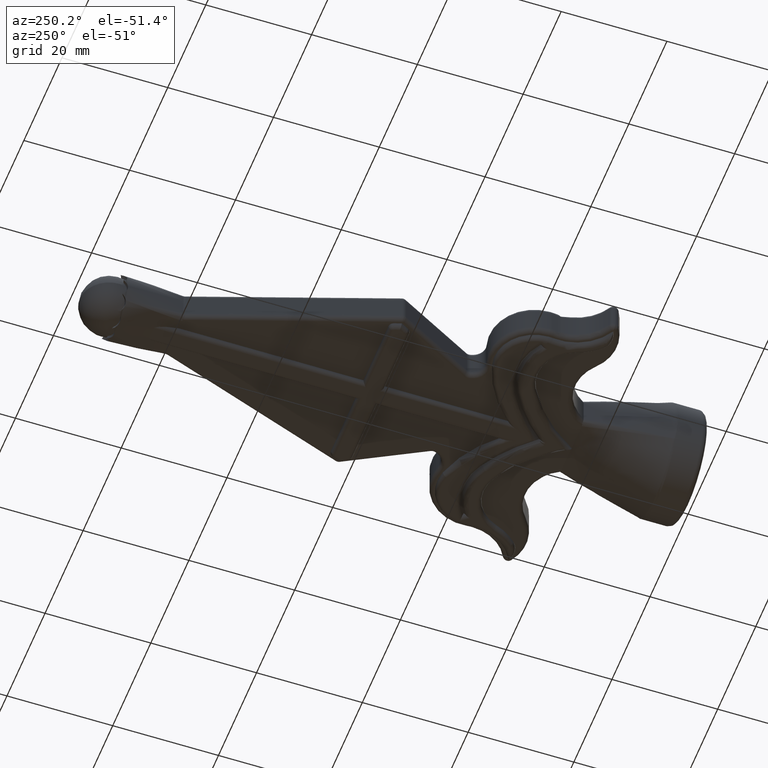
[diagram: clean part render]
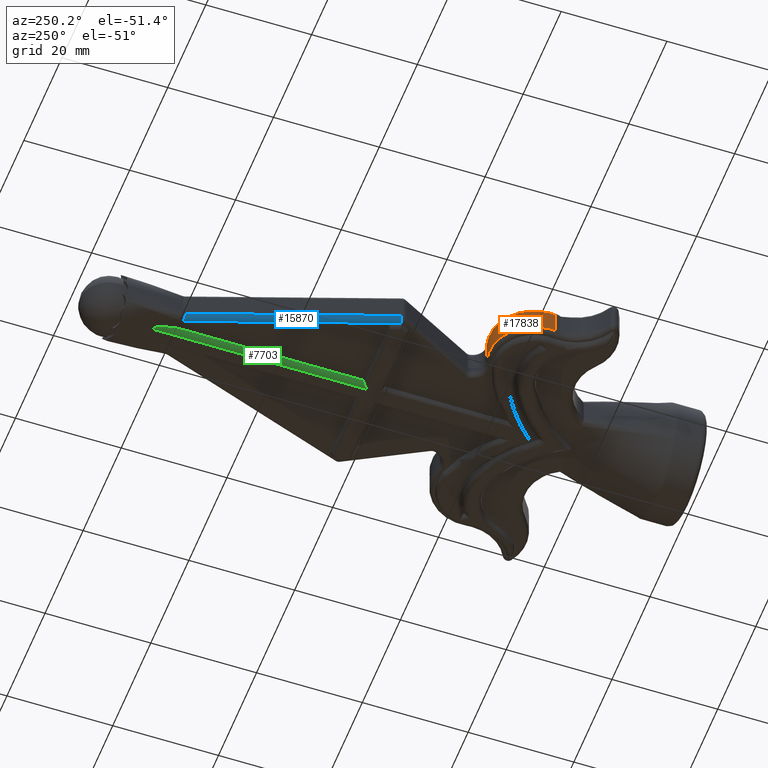
[diagram: same view with three faces highlighted in distinct colors, each labeled with its STEP entity id]
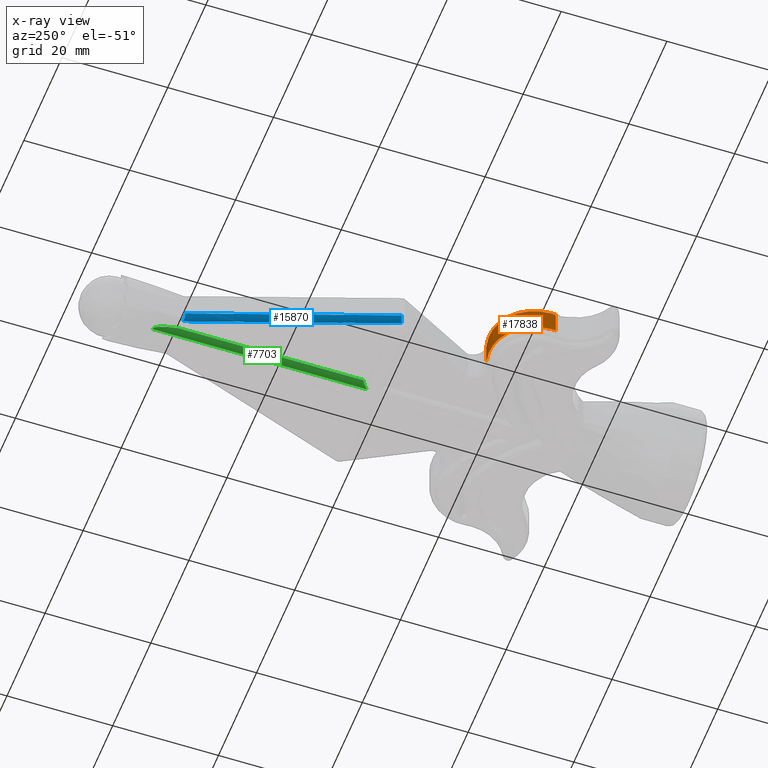
[diagram: x-ray of the same camera — body ghosted, the three highlighted faces saturated]
A machine part, auxiliary view with three faces highlighted in distinct colors.
The next image is the same camera in x-ray (body ghosted, the three faces saturated) — at least one of them is partly hidden behind the body in this view.
Their STEP definitions:

[orange] entity #17838 — the highlighted cylindrical surface (partial cylindrical patch) has radius 8.5 mm, axis along (0, 0, -1).
#278 = CIRCLE ( 'NONE', #4903, 8.500000000000000000 ) ;
#297 = ORIENTED_EDGE ( 'NONE', *, *, #17374, .T. ) ;
#399 = CARTESIAN_POINT ( 'NONE',  ( -15.00000000000000000, 34.49999999999999300, -2.250000000000000000 ) ) ;
#431 = VERTEX_POINT ( 'NONE', #8911 ) ;
#852 = VERTEX_POINT ( 'NONE', #15346 ) ;
#860 = DIRECTION ( 'NONE',  ( 0.0000000000000000000, 0.0000000000000000000, -1.000000000000000000 ) ) ;
#2001 = DIRECTION ( 'NONE',  ( -1.000000000000000000, 0.0000000000000000000, 0.0000000000000000000 ) ) ;
#2450 = DIRECTION ( 'NONE',  ( 1.000000000000000000, 0.0000000000000000000, 0.0000000000000000000 ) ) ;
#2721 = DIRECTION ( 'NONE',  ( -0.0000000000000000000, -0.0000000000000000000, -1.000000000000000000 ) ) ;
#2917 = CARTESIAN_POINT ( 'NONE',  ( -15.00000000000000000, 34.49999999999999300, 2.250000000000000000 ) ) ;
#2950 = DIRECTION ( 'NONE',  ( -1.000000000000000000, 0.0000000000000000000, 0.0000000000000000000 ) ) ;
#3704 = EDGE_LOOP ( 'NONE', ( #9384, #17498, #297, #7767, #8089, #15598 ) ) ;
#4672 = CYLINDRICAL_SURFACE ( 'NONE', #5962, 8.500000000000000000 ) ;
#4903 = AXIS2_PLACEMENT_3D ( 'NONE', #19180, #6545, #14225 ) ;
#5962 = AXIS2_PLACEMENT_3D ( 'NONE', #7153, #860, #2450 ) ;
#6189 = CARTESIAN_POINT ( 'NONE',  ( -15.00000000000000000, 34.49999999999999300, 2.250000000000000000 ) ) ;
#6448 = CARTESIAN_POINT ( 'NONE',  ( -23.44097150806706500, 33.50000000000000000, -2.249999999999998200 ) ) ;
#6545 = DIRECTION ( 'NONE',  ( 0.0000000000000000000, 0.0000000000000000000, 1.000000000000000000 ) ) ;
#6735 = VECTOR ( 'NONE', #19836, 1000.000000000000000 ) ;
#6956 = CARTESIAN_POINT ( 'NONE',  ( -23.44097150806706500, 33.50000000000000000, 3.250000000000000000 ) ) ;
#7153 = CARTESIAN_POINT ( 'NONE',  ( -15.00000000000000000, 34.49999999999999300, 3.250000000000000000 ) ) ;
#7179 = VERTEX_POINT ( 'NONE', #6448 ) ;
#7554 = CARTESIAN_POINT ( 'NONE',  ( -12.64832423569867400, 42.66820794909126100, -2.249999999999998200 ) ) ;
#7646 = EDGE_CURVE ( 'NONE', #852, #20471, #15635, .T. ) ;
#7767 = ORIENTED_EDGE ( 'NONE', *, *, #7646, .T. ) ;
#8089 = ORIENTED_EDGE ( 'NONE', *, *, #19255, .T. ) ;
#8911 = CARTESIAN_POINT ( 'NONE',  ( -23.50000000000000000, 34.49999999999999300, -2.250000000000000000 ) ) ;
#9033 = AXIS2_PLACEMENT_3D ( 'NONE', #2917, #2721, #18603 ) ;
#9056 = VERTEX_POINT ( 'NONE', #17046 ) ;
#9181 = DIRECTION ( 'NONE',  ( -0.0000000000000000000, -0.0000000000000000000, -1.000000000000000000 ) ) ;
#9384 = ORIENTED_EDGE ( 'NONE', *, *, #17515, .F. ) ;
#9805 = CIRCLE ( 'NONE', #15377, 8.500000000000000000 ) ;
#11054 = CIRCLE ( 'NONE', #9033, 8.500000000000000000 ) ;
#11480 = DIRECTION ( 'NONE',  ( 0.0000000000000000000, 0.0000000000000000000, 1.000000000000000000 ) ) ;
#11659 = DIRECTION ( 'NONE',  ( 0.0000000000000000000, 0.0000000000000000000, -1.000000000000000000 ) ) ;
#12033 = CARTESIAN_POINT ( 'NONE',  ( -12.64832423569867400, 42.66820794909126100, 3.250000000000000000 ) ) ;
#12829 = CIRCLE ( 'NONE', #17581, 8.500000000000000000 ) ;
#13544 = EDGE_CURVE ( 'NONE', #431, #7179, #278, .T. ) ;
#14225 = DIRECTION ( 'NONE',  ( -1.000000000000000000, 0.0000000000000000000, 0.0000000000000000000 ) ) ;
#14261 = CARTESIAN_POINT ( 'NONE',  ( -23.44097150806706500, 33.50000000000000000, 2.250000000000000400 ) ) ;
#15346 = CARTESIAN_POINT ( 'NONE',  ( -12.64832423569867400, 42.66820794909126100, 2.250000000000000400 ) ) ;
#15377 = AXIS2_PLACEMENT_3D ( 'NONE', #399, #11480, #2001 ) ;
#15542 = FACE_OUTER_BOUND ( 'NONE', #3704, .T. ) ;
#15598 = ORIENTED_EDGE ( 'NONE', *, *, #13544, .T. ) ;
#15635 = LINE ( 'NONE', #12033, #6735 ) ;
#15995 = VERTEX_POINT ( 'NONE', #14261 ) ;
#16027 = LINE ( 'NONE', #6956, #17757 ) ;
#17046 = CARTESIAN_POINT ( 'NONE',  ( -23.50000000000000000, 34.49999999999999300, 2.250000000000000000 ) ) ;
#17374 = EDGE_CURVE ( 'NONE', #9056, #852, #12829, .T. ) ;
#17498 = ORIENTED_EDGE ( 'NONE', *, *, #19062, .T. ) ;
#17515 = EDGE_CURVE ( 'NONE', #15995, #7179, #16027, .T. ) ;
#17581 = AXIS2_PLACEMENT_3D ( 'NONE', #6189, #9181, #2950 ) ;
#17757 = VECTOR ( 'NONE', #11659, 1000.000000000000000 ) ;
#17838 = ADVANCED_FACE ( 'NONE', ( #15542 ), #4672, .T. ) ;
#18603 = DIRECTION ( 'NONE',  ( -1.000000000000000000, 0.0000000000000000000, 0.0000000000000000000 ) ) ;
#19062 = EDGE_CURVE ( 'NONE', #15995, #9056, #11054, .T. ) ;
#19180 = CARTESIAN_POINT ( 'NONE',  ( -15.00000000000000000, 34.49999999999999300, -2.250000000000000000 ) ) ;
#19255 = EDGE_CURVE ( 'NONE', #20471, #431, #9805, .T. ) ;
#19836 = DIRECTION ( 'NONE',  ( 0.0000000000000000000, 0.0000000000000000000, -1.000000000000000000 ) ) ;
#20471 = VERTEX_POINT ( 'NONE', #7554 ) ;

[blue] entity #15870 — the highlighted cylindrical surface (edge-blend (fillet) strip) has radius 1 mm, axis along (-0.3278, -0.9447, 0).
#42 = CARTESIAN_POINT ( 'NONE',  ( -4.783863017206222400, 96.80056997001752000, -2.539931204127660700 ) ) ;
#133 = CARTESIAN_POINT ( 'NONE',  ( -3.736532026310258800, 96.94434520947561400, -3.249704837920847300 ) ) ;
#218 = VERTEX_POINT ( 'NONE', #10084 ) ;
#594 = AXIS2_PLACEMENT_3D ( 'NONE', #20247, #4598, #6091 ) ;
#1312 = VERTEX_POINT ( 'NONE', #19570 ) ;
#1700 = DIRECTION ( 'NONE',  ( 0.3278317734132558100, 0.9447361157173571600, -0.0000000000000000000 ) ) ;
#1730 = CYLINDRICAL_SURFACE ( 'NONE', #9833, 0.9999999999999985600 ) ;
#2255 = LINE ( 'NONE', #14351, #3766 ) ;
#2307 = B_SPLINE_CURVE_WITH_KNOTS ( 'NONE', 3,
 ( #19081, #9694, #3485, #133 ),
 .UNSPECIFIED., .F., .F.,
 ( 4, 4 ),
 ( 0.0000000000000000000, 3.323407274878045700E-005 ),
 .UNSPECIFIED. ) ;
#2376 = ORIENTED_EDGE ( 'NONE', *, *, #5965, .T. ) ;
#2549 = CARTESIAN_POINT ( 'NONE',  ( -4.750000000000000000, 97.00000000000000000, -2.250000000000000000 ) ) ;
#2756 = CARTESIAN_POINT ( 'NONE',  ( -17.44473611571735800, 60.41667690367098200, -2.249999999999998200 ) ) ;
#2903 = VERTEX_POINT ( 'NONE', #2756 ) ;
#2915 = VERTEX_POINT ( 'NONE', #11093 ) ;
#3020 = CARTESIAN_POINT ( 'NONE',  ( -3.805263884282642700, 96.67216822658674900, -2.250000000000000000 ) ) ;
#3320 = CARTESIAN_POINT ( 'NONE',  ( -4.815056103519221900, 96.80528557381886400, -2.404396577706914100 ) ) ;
#3485 = CARTESIAN_POINT ( 'NONE',  ( -3.727185634152853800, 96.95028992239575400, -3.249872059964242300 ) ) ;
#3766 = VECTOR ( 'NONE', #1700, 1000.000000000000100 ) ;
#3996 = ORIENTED_EDGE ( 'NONE', *, *, #9509, .F. ) ;
#4073 = EDGE_LOOP ( 'NONE', ( #8135, #9261, #3996, #9289, #16213, #2376, #10373 ) ) ;
#4598 = DIRECTION ( 'NONE',  ( 0.3278317734132574200, 0.9447361157173567200, 0.0000000000000000000 ) ) ;
#4948 = EDGE_CURVE ( 'NONE', #13851, #12466, #8129, .T. ) ;
#5381 = EDGE_CURVE ( 'NONE', #5514, #2915, #9683, .T. ) ;
#5514 = VERTEX_POINT ( 'NONE', #7887 ) ;
#5965 = EDGE_CURVE ( 'NONE', #1312, #2903, #19906, .T. ) ;
#6072 = DIRECTION ( 'NONE',  ( 0.9447361157173587200, -0.3278317734132512600, 0.0000000000000000000 ) ) ;
#6091 = DIRECTION ( 'NONE',  ( -0.9447361157173567200, 0.3278317734132574800, 0.0000000000000000000 ) ) ;
#6345 = CARTESIAN_POINT ( 'NONE',  ( -3.860782217182031000, 96.88433709544686700, -3.244191577628371600 ) ) ;
#6413 = CARTESIAN_POINT ( 'NONE',  ( -4.250851901467100900, 96.81359541802655100, -3.142618601104591600 ) ) ;
#7122 = DIRECTION ( 'NONE',  ( -0.3278317734132558100, -0.9447361157173571600, 0.0000000000000000000 ) ) ;
#7406 = VECTOR ( 'NONE', #16735, 1000.000000000000100 ) ;
#7612 = EDGE_CURVE ( 'NONE', #5514, #2903, #19615, .T. ) ;
#7623 = CARTESIAN_POINT ( 'NONE',  ( -4.815515925993656400, 96.81119810079285100, -2.250000000000000000 ) ) ;
#7877 = CARTESIAN_POINT ( 'NONE',  ( -3.736532026310258800, 96.94434520947561400, -3.249704837920847300 ) ) ;
#7887 = CARTESIAN_POINT ( 'NONE',  ( -4.815515925993656400, 96.81119810079285100, -2.250000000000000000 ) ) ;
#8129 = LINE ( 'NONE', #10714, #7406 ) ;
#8135 = ORIENTED_EDGE ( 'NONE', *, *, #5381, .T. ) ;
#8802 = EDGE_CURVE ( 'NONE', #1312, #13851, #2255, .T. ) ;
#8827 = CARTESIAN_POINT ( 'NONE',  ( -4.815393398378864400, 96.81115003984933800, -2.266217491759424400 ) ) ;
#9177 = FACE_OUTER_BOUND ( 'NONE', #4073, .T. ) ;
#9231 = VECTOR ( 'NONE', #7122, 1000.000000000000100 ) ;
#9261 = ORIENTED_EDGE ( 'NONE', *, *, #10736, .T. ) ;
#9289 = ORIENTED_EDGE ( 'NONE', *, *, #4948, .F. ) ;
#9311 = CARTESIAN_POINT ( 'NONE',  ( -16.03923065094029700, 61.41667690367020100, -3.250000000000000000 ) ) ;
#9351 = CARTESIAN_POINT ( 'NONE',  ( -4.815447726895143000, 96.81139463498097100, -2.255402004469518200 ) ) ;
#9509 = EDGE_CURVE ( 'NONE', #12466, #218, #2307, .T. ) ;
#9532 = CARTESIAN_POINT ( 'NONE',  ( -4.815393398378864400, 96.81115003984933800, -2.266217491759424400 ) ) ;
#9665 = CARTESIAN_POINT ( 'NONE',  ( -4.666639430000595100, 96.79625386274685200, -2.786946182567356700 ) ) ;
#9683 = B_SPLINE_CURVE_WITH_KNOTS ( 'NONE', 3,
 ( #7623, #9351, #17213, #8827 ),
 .UNSPECIFIED., .F., .F.,
 ( 4, 4 ),
 ( 4.336808689942017700E-019, 1.621802583046693200E-005 ),
 .UNSPECIFIED. ) ;
#9694 = CARTESIAN_POINT ( 'NONE',  ( -3.716954373456695200, 96.95537321263087400, -3.250000000000003100 ) ) ;
#9833 = AXIS2_PLACEMENT_3D ( 'NONE', #3020, #10771, #6072 ) ;
#10084 = CARTESIAN_POINT ( 'NONE',  ( -3.736532026310258800, 96.94434520947561400, -3.249704837920847300 ) ) ;
#10295 = B_SPLINE_CURVE_WITH_KNOTS ( 'NONE', 3,
 ( #9532, #3320, #42, #9665, #14166, #11117, #6413, #15745, #16015, #6345, #17331, #7877 ),
 .UNSPECIFIED., .F., .F.,
 ( 4, 2, 2, 2, 2, 4 ),
 ( 0.0000000000000000000, 0.0004083378644443875900, 0.0008166757288887751800, 0.001225013593333162600, 0.001429182525555357900, 0.001633351457777553200 ),
 .UNSPECIFIED. ) ;
#10373 = ORIENTED_EDGE ( 'NONE', *, *, #7612, .F. ) ;
#10714 = CARTESIAN_POINT ( 'NONE',  ( -12.95336883524374900, 70.30942416562240300, -3.250000000000000000 ) ) ;
#10736 = EDGE_CURVE ( 'NONE', #2915, #218, #10295, .T. ) ;
#10771 = DIRECTION ( 'NONE',  ( -0.3278317734132558700, -0.9447361157173572700, 0.0000000000000000000 ) ) ;
#11093 = CARTESIAN_POINT ( 'NONE',  ( -4.815393398378864400, 96.81115003984933800, -2.266217491759424400 ) ) ;
#11117 = CARTESIAN_POINT ( 'NONE',  ( -4.373433483464183700, 96.80554102862872400, -3.074700040484522400 ) ) ;
#12466 = VERTEX_POINT ( 'NONE', #18557 ) ;
#13851 = VERTEX_POINT ( 'NONE', #9311 ) ;
#14166 = CARTESIAN_POINT ( 'NONE',  ( -4.580350449550135900, 96.79662651663235800, -2.897681790886445200 ) ) ;
#14351 = CARTESIAN_POINT ( 'NONE',  ( -12.95336883524374900, 70.30942416562240300, -3.250000000000000000 ) ) ;
#15745 = CARTESIAN_POINT ( 'NONE',  ( -4.058865624932516300, 96.83951185178155200, -3.207648954389258600 ) ) ;
#15870 = ADVANCED_FACE ( 'NONE', ( #9177 ), #1730, .T. ) ;
#16015 = CARTESIAN_POINT ( 'NONE',  ( -3.992182323847044000, 96.85062004656735700, -3.223670710255374300 ) ) ;
#16213 = ORIENTED_EDGE ( 'NONE', *, *, #8802, .F. ) ;
#16735 = DIRECTION ( 'NONE',  ( 0.3278317734132558100, 0.9447361157173571600, -0.0000000000000000000 ) ) ;
#17213 = CARTESIAN_POINT ( 'NONE',  ( -4.815406582526738300, 96.81137926951338100, -2.260816361411761600 ) ) ;
#17331 = CARTESIAN_POINT ( 'NONE',  ( -3.795188430669987200, 96.90703717885023100, -3.248655380158958800 ) ) ;
#18557 = CARTESIAN_POINT ( 'NONE',  ( -3.706146098996261800, 96.95780299131689600, -3.250000000000000400 ) ) ;
#19081 = CARTESIAN_POINT ( 'NONE',  ( -3.706146098996261800, 96.95780299131689600, -3.250000000000000400 ) ) ;
#19570 = CARTESIAN_POINT ( 'NONE',  ( -16.50000000000000000, 60.08884513025772400, -3.250000000000000000 ) ) ;
#19615 = LINE ( 'NONE', #2549, #9231 ) ;
#19906 = CIRCLE ( 'NONE', #594, 1.000000000000000700 ) ;
#20247 = CARTESIAN_POINT ( 'NONE',  ( -16.50000000000000000, 60.08884513025772400, -2.250000000000000000 ) ) ;

[green] entity #7703 — the highlighted cylindrical surface (edge-blend (fillet) strip) has radius 1 mm, axis along (0, -1, 0).
#118 = CARTESIAN_POINT ( 'NONE',  ( -1.773289917226337400, 100.2995100330490600, -3.898881850079567900 ) ) ;
#734 = VERTEX_POINT ( 'NONE', #15011 ) ;
#796 = ORIENTED_EDGE ( 'NONE', *, *, #7442, .F. ) ;
#1600 = EDGE_CURVE ( 'NONE', #5288, #14710, #9820, .T. ) ;
#1756 = B_SPLINE_CURVE_WITH_KNOTS ( 'NONE', 3,
 ( #5480, #11906, #6996, #2428 ),
 .UNSPECIFIED., .F., .F.,
 ( 4, 4 ),
 ( 0.0000000000000000000, 0.0001803682492790425400 ),
 .UNSPECIFIED. ) ;
#1846 = CARTESIAN_POINT ( 'NONE',  ( -2.000000000000000000, 62.08884513025772400, -3.250000000000000000 ) ) ;
#2428 = CARTESIAN_POINT ( 'NONE',  ( -1.999999999981717700, 96.90953574025549200, -3.250000000000000000 ) ) ;
#2906 = CARTESIAN_POINT ( 'NONE',  ( -1.000000000000000000, 61.08884513025772400, -4.250000000000000000 ) ) ;
#3150 = ORIENTED_EDGE ( 'NONE', *, *, #18303, .F. ) ;
#3396 = CARTESIAN_POINT ( 'NONE',  ( -1.248413937059109400, 101.5297144820531100, -4.219491921102040500 ) ) ;
#3457 = CARTESIAN_POINT ( 'NONE',  ( -1.000000000000000000, 0.0000000000000000000, -4.250000000000000000 ) ) ;
#3607 = DIRECTION ( 'NONE',  ( -0.0000000000000000000, 1.000000000000000000, -0.0000000000000000000 ) ) ;
#3622 = CARTESIAN_POINT ( 'NONE',  ( -1.559037352464225600, 101.0759110517337300, -4.085805461880977600 ) ) ;
#3836 = LINE ( 'NONE', #3457, #9992 ) ;
#4647 = CARTESIAN_POINT ( 'NONE',  ( -2.000000000000001800, 62.08884513025772400, -3.250000000000000000 ) ) ;
#4855 = CARTESIAN_POINT ( 'NONE',  ( -1.951095470472705700, 98.70405554816190400, -3.568936313911072100 ) ) ;
#4984 = CARTESIAN_POINT ( 'NONE',  ( -1.000000000000043300, 101.5569352841777300, -4.250000000000000000 ) ) ;
#5126 = CARTESIAN_POINT ( 'NONE',  ( -1.419237812795970800, 101.3422518596871700, -4.159402572688312800 ) ) ;
#5288 = VERTEX_POINT ( 'NONE', #19434 ) ;
#5480 = CARTESIAN_POINT ( 'NONE',  ( -1.999867810467215600, 97.08916960755922800, -3.266259200212366500 ) ) ;
#5539 = VECTOR ( 'NONE', #7936, 1000.000000000000000 ) ;
#5922 = ORIENTED_EDGE ( 'NONE', *, *, #1600, .F. ) ;
#6222 = EDGE_CURVE ( 'NONE', #14710, #17267, #3836, .T. ) ;
#6423 = CARTESIAN_POINT ( 'NONE',  ( -1.364226348359505400, 101.4294938138011400, -4.184791658066127500 ) ) ;
#6482 = LINE ( 'NONE', #1846, #5539 ) ;
#6996 = CARTESIAN_POINT ( 'NONE',  ( -2.000000000000000000, 96.96990428477802500, -3.249999999999995100 ) ) ;
#7442 = EDGE_CURVE ( 'NONE', #15879, #5288, #6482, .T. ) ;
#7703 = ADVANCED_FACE ( 'NONE', ( #8232 ), #9949, .T. ) ;
#7752 = CARTESIAN_POINT ( 'NONE',  ( -2.000000000000000000, 62.08884513025772400, -3.835786437626904600 ) ) ;
#7936 = DIRECTION ( 'NONE',  ( -0.0000000000000000000, -1.000000000000000000, 0.0000000000000000000 ) ) ;
#8026 = CARTESIAN_POINT ( 'NONE',  ( -1.831735960515582700, 99.90332082686151700, -3.813093200653114000 ) ) ;
#8232 = FACE_OUTER_BOUND ( 'NONE', #14969, .T. ) ;
#9388 = B_SPLINE_CURVE_WITH_KNOTS ( 'NONE', 3,
 ( #4984, #16100, #13076, #19198, #3396, #6423, #5126, #3622, #14573, #118, #8026, #11268, #4855, #9747, #15900, #14500 ),
 .UNSPECIFIED., .F., .F.,
 ( 4, 2, 2, 2, 2, 2, 2, 4 ),
 ( 2.170138375112152300E-017, 0.0001560340942627383700, 0.0003120681885254549900, 0.0006241363770509135700, 0.001248272754101865700, 0.002496545508203810400, 0.003744818262305754800, 0.004993091016407699700 ),
 .UNSPECIFIED. ) ;
#9529 = CARTESIAN_POINT ( 'NONE',  ( -1.585786437626904600, 61.67463156788461700, -4.250000000000000000 ) ) ;
#9747 = CARTESIAN_POINT ( 'NONE',  ( -1.989505416532221000, 97.89748834754917100, -3.414869636192581200 ) ) ;
#9820 =( BOUNDED_CURVE ( )  B_SPLINE_CURVE ( 3, ( #4647, #7752, #9529, #2906 ),
 .UNSPECIFIED., .F., .F. ) 
 B_SPLINE_CURVE_WITH_KNOTS ( ( 4, 4 ),
 ( 0.0000000000000000000, 1.570796326794896800 ),
 .UNSPECIFIED. ) 
 CURVE ( )  GEOMETRIC_REPRESENTATION_ITEM ( )  RATIONAL_B_SPLINE_CURVE ( ( 1.000000000000000000, 0.8047378541243649400, 0.8047378541243649400, 1.000000000000000000 ) ) 
 REPRESENTATION_ITEM ( '' )  );
#9949 = CYLINDRICAL_SURFACE ( 'NONE', #13316, 1.000000000000000000 ) ;
#9992 = VECTOR ( 'NONE', #3607, 1000.000000000000000 ) ;
#10715 = CARTESIAN_POINT ( 'NONE',  ( -1.000000000000000000, 61.08884513025772400, -4.250000000000000000 ) ) ;
#11268 = CARTESIAN_POINT ( 'NONE',  ( -1.922195655567424400, 99.10591308888437800, -3.648012353437823000 ) ) ;
#11750 = CARTESIAN_POINT ( 'NONE',  ( -1.000000000000043300, 101.5569352841777300, -4.250000000000000000 ) ) ;
#11906 = CARTESIAN_POINT ( 'NONE',  ( -2.000044083558938800, 97.02978235400625800, -3.255419196522731300 ) ) ;
#12432 = DIRECTION ( 'NONE',  ( 0.0000000000000000000, -1.000000000000000000, 0.0000000000000000000 ) ) ;
#12500 = EDGE_CURVE ( 'NONE', #17267, #734, #9388, .T. ) ;
#12831 = ORIENTED_EDGE ( 'NONE', *, *, #12500, .F. ) ;
#13076 = CARTESIAN_POINT ( 'NONE',  ( -1.103082796434791100, 101.5815967271038100, -4.245961080038172000 ) ) ;
#13316 = AXIS2_PLACEMENT_3D ( 'NONE', #13751, #12432, #16847 ) ;
#13751 = CARTESIAN_POINT ( 'NONE',  ( -1.000000000000000000, 62.08884513025772400, -3.250000000000000400 ) ) ;
#14073 = CARTESIAN_POINT ( 'NONE',  ( -1.999999999981717700, 96.90953574025549200, -3.250000000000000000 ) ) ;
#14500 = CARTESIAN_POINT ( 'NONE',  ( -1.999867810467215600, 97.08916960755922800, -3.266259200212366500 ) ) ;
#14573 = CARTESIAN_POINT ( 'NONE',  ( -1.619889300978103000, 100.8825599496867200, -4.037714093053226700 ) ) ;
#14710 = VERTEX_POINT ( 'NONE', #10715 ) ;
#14969 = EDGE_LOOP ( 'NONE', ( #12831, #16172, #5922, #796, #3150 ) ) ;
#15011 = CARTESIAN_POINT ( 'NONE',  ( -1.999867810467215600, 97.08916960755922800, -3.266259200212366500 ) ) ;
#15879 = VERTEX_POINT ( 'NONE', #14073 ) ;
#15900 = CARTESIAN_POINT ( 'NONE',  ( -1.998667601019169300, 97.49352595089294500, -3.340066692416276500 ) ) ;
#16100 = CARTESIAN_POINT ( 'NONE',  ( -1.049072949809169800, 101.5764781251034900, -4.250000000000000900 ) ) ;
#16172 = ORIENTED_EDGE ( 'NONE', *, *, #6222, .F. ) ;
#16847 = DIRECTION ( 'NONE',  ( 0.0000000000000000000, 0.0000000000000000000, -1.000000000000000000 ) ) ;
#17267 = VERTEX_POINT ( 'NONE', #11750 ) ;
#18303 = EDGE_CURVE ( 'NONE', #734, #15879, #1756, .T. ) ;
#19198 = CARTESIAN_POINT ( 'NONE',  ( -1.203170819645155800, 101.5573669060877900, -4.230452015101368700 ) ) ;
#19434 = CARTESIAN_POINT ( 'NONE',  ( -2.000000000000001800, 62.08884513025772400, -3.250000000000000000 ) ) ;